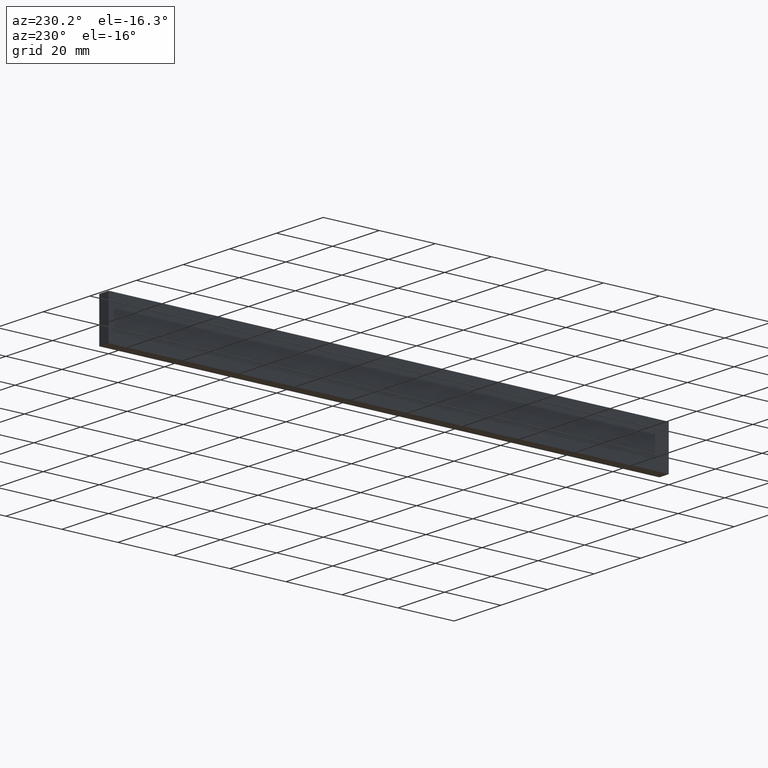
[diagram: clean part render]
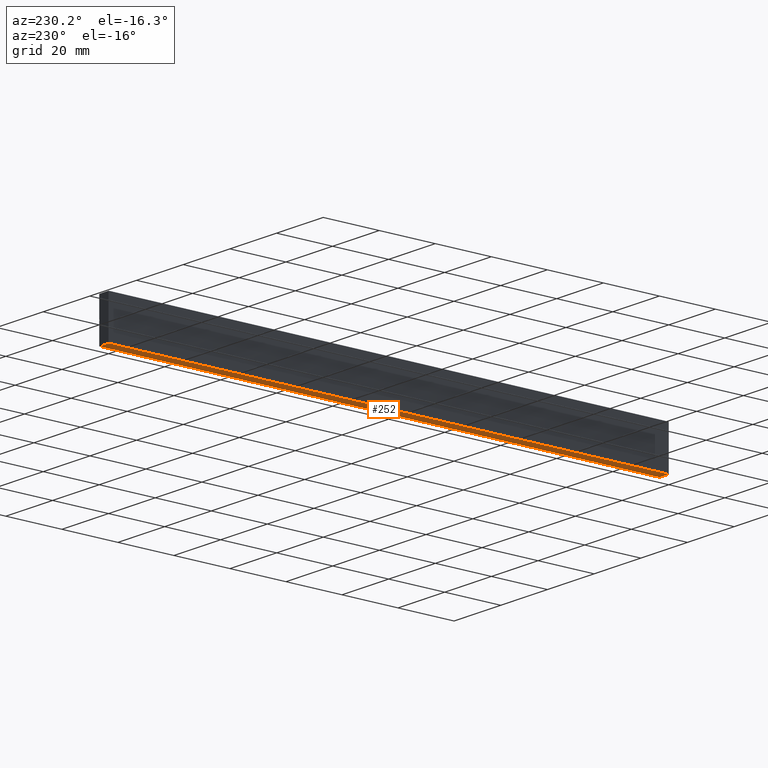
[diagram: same view with one face highlighted and labeled with its STEP entity id]
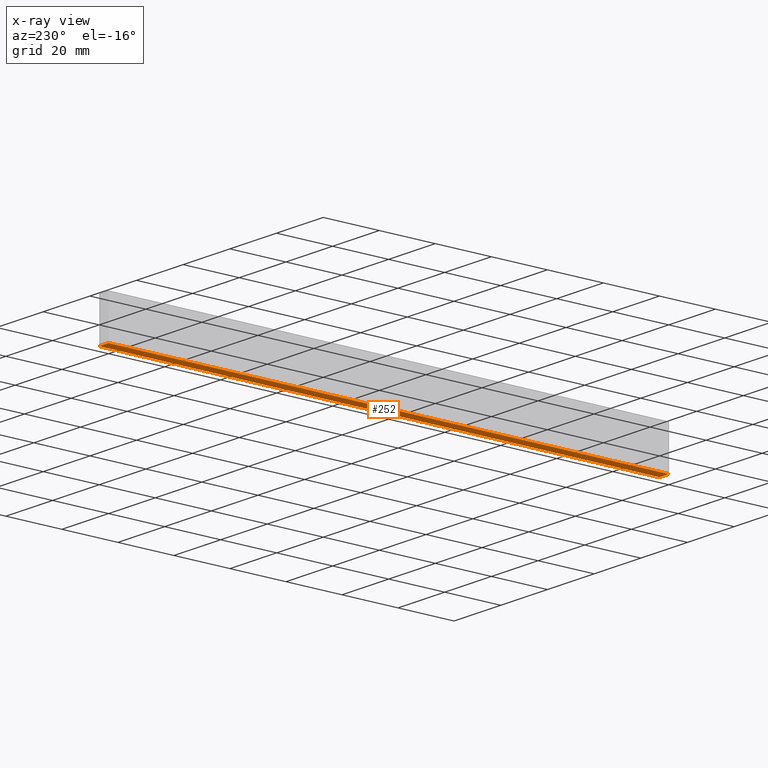
[diagram: x-ray of the same camera — body ghosted, the highlighted face saturated]
A machine part, auxiliary view. The second image highlights one B-rep face of the part: STEP entity #252.
The next image is the same camera in x-ray: the body ghosted, the highlighted face saturated — about 0% of this face is hidden behind the body in this view.
In plain terms, the highlighted face is a freeform B-spline surface patch.
Its self-contained STEP definition (entity closure, byte-faithful):
#51=CARTESIAN_POINT('',(0.0,0.0,0.0));
#52=VERTEX_POINT('',#51);
#58=CARTESIAN_POINT('',(4.0,0.0,0.0));
#59=VERTEX_POINT('',#58);
#60=CARTESIAN_POINT('',(0.0,0.0,0.0));
#61=CARTESIAN_POINT('',(4.0,0.0,0.0));
#62=QUASI_UNIFORM_CURVE('',1,(#60,#61),.UNSPECIFIED.,.F.,.U.);
#63=EDGE_CURVE('',#52,#59,#62,.T.);
#109=CARTESIAN_POINT('',(0.0,200.0,0.0));
#110=VERTEX_POINT('',#109);
#145=CARTESIAN_POINT('',(4.0,200.0,0.0));
#146=VERTEX_POINT('',#145);
#152=CARTESIAN_POINT('',(0.0,200.0,0.0));
#153=CARTESIAN_POINT('',(4.0,200.0,0.0));
#154=QUASI_UNIFORM_CURVE('',1,(#152,#153),.UNSPECIFIED.,.F.,.U.);
#155=EDGE_CURVE('',#110,#146,#154,.T.);
#227=CARTESIAN_POINT('',(4.0,200.0,0.0));
#228=CARTESIAN_POINT('',(4.0,0.0,0.0));
#229=QUASI_UNIFORM_CURVE('',1,(#227,#228),.UNSPECIFIED.,.F.,.U.);
#230=EDGE_CURVE('',#146,#59,#229,.T.);
#237=CARTESIAN_POINT('',(4.199799992247224,-9.989999612361194,0.0));
#238=CARTESIAN_POINT('',(-0.199800099535584,-9.989999612361194,0.0));
#239=CARTESIAN_POINT('',(4.199799992247224,209.990004976779200,0.0));
#240=CARTESIAN_POINT('',(-0.199800099535584,209.990004976779200,0.0));
#241=B_SPLINE_SURFACE_WITH_KNOTS('',1,1,((#237,#239),(#238,#240)),.UNSPECIFIED.,.F.,.F.,.U.,(2,2),(2,2),(0.0,4.399600091782808),(0.0,219.980004589140410),.UNSPECIFIED.);
#242=ORIENTED_EDGE('',*,*,#63,.F.);
#243=CARTESIAN_POINT('',(0.0,200.0,0.0));
#244=CARTESIAN_POINT('',(0.0,0.0,0.0));
#245=QUASI_UNIFORM_CURVE('',1,(#243,#244),.UNSPECIFIED.,.F.,.U.);
#246=EDGE_CURVE('',#110,#52,#245,.T.);
#247=ORIENTED_EDGE('',*,*,#246,.F.);
#248=ORIENTED_EDGE('',*,*,#155,.T.);
#249=ORIENTED_EDGE('',*,*,#230,.T.);
#250=EDGE_LOOP('',(#242,#247,#248,#249));
#251=FACE_OUTER_BOUND('',#250,.T.);
#252=ADVANCED_FACE('',(#251),#241,.T.);